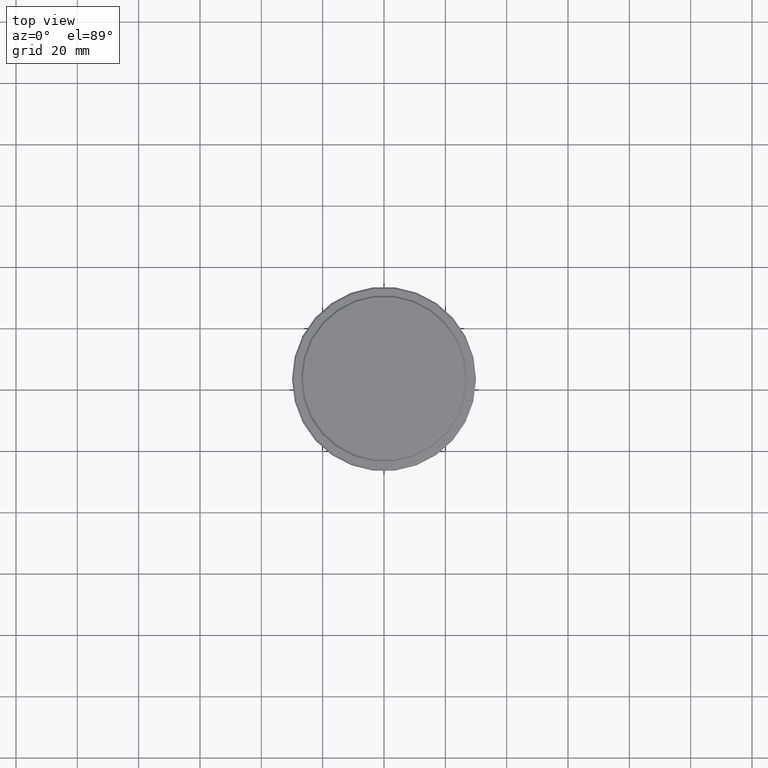
[diagram: clean part render]
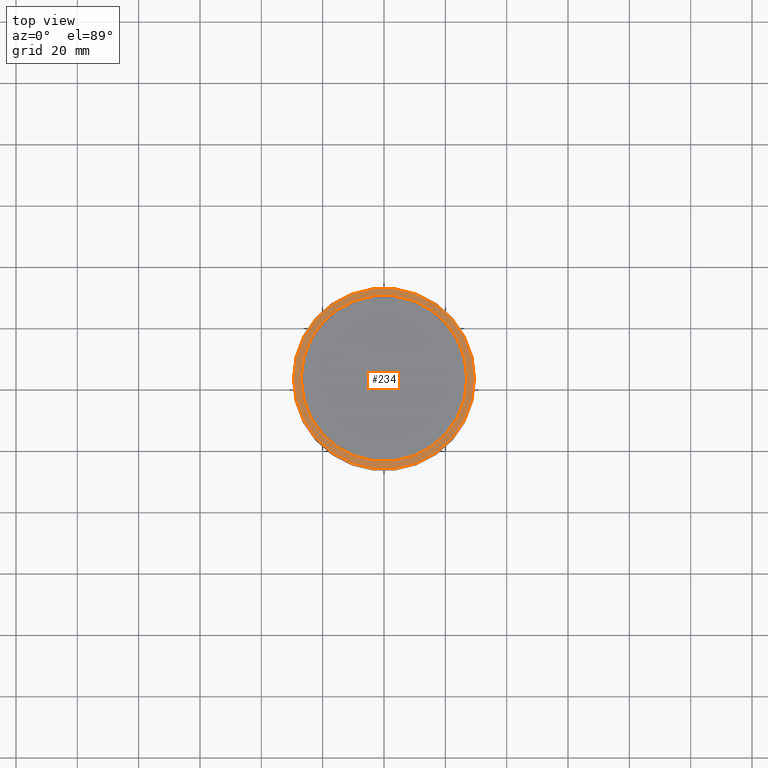
[diagram: same view with one face highlighted and labeled with its STEP entity id]
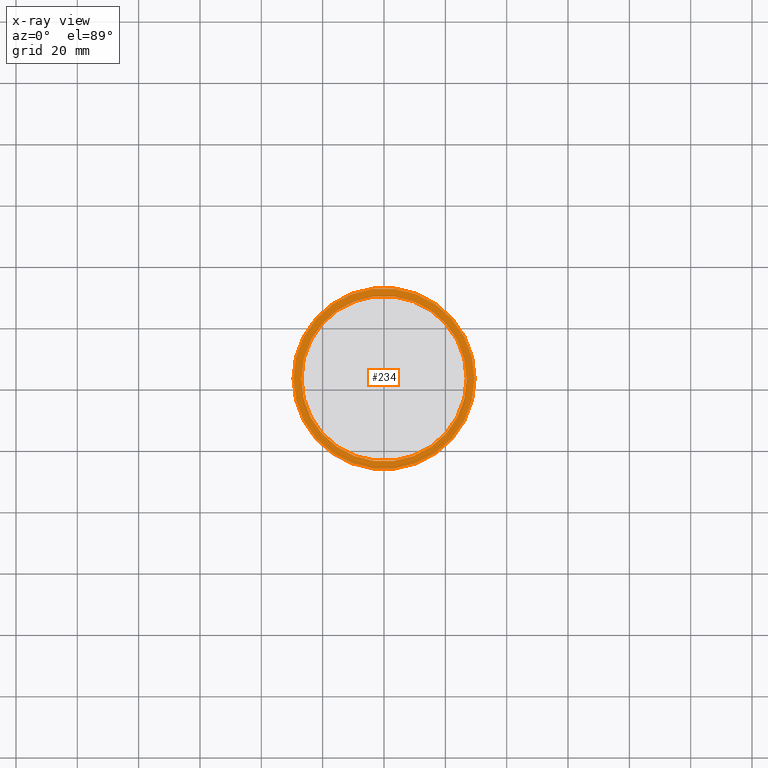
[diagram: x-ray of the same camera — body ghosted, the highlighted face saturated]
A machine part, top view. The second image highlights one B-rep face of the part: STEP entity #234.
The next image is the same camera in x-ray: the body ghosted, the highlighted face saturated — about 0% of this face is hidden behind the body in this view.
In plain terms, the highlighted planar face has unit normal (0, -0, 1).
Its self-contained STEP definition (entity closure, byte-faithful):
#15 = CARTESIAN_POINT ( 'NONE',  ( 0.000000000000000000, 0.000000000000000000, -12.00000000000000178 ) ) ;
#28 = EDGE_CURVE ( 'NONE', #413, #502, #29, .T. ) ;
#29 = CIRCLE ( 'NONE', #1218, 26.99999999999999289 ) ;
#35 = CIRCLE ( 'NONE', #309, 26.99999999999999289 ) ;
#147 = ORIENTED_EDGE ( 'NONE', *, *, #882, .T. ) ;
#148 = CIRCLE ( 'NONE', #947, 29.50000000000002487 ) ;
#165 = CARTESIAN_POINT ( 'NONE',  ( 29.50000000000002487, 3.643324227463376968E-15, -12.00000000000000178 ) ) ;
#195 = CIRCLE ( 'NONE', #991, 29.50000000000002487 ) ;
#203 = DIRECTION ( 'NONE',  ( -0.000000000000000000, -0.000000000000000000, 1.000000000000000000 ) ) ;
#208 = DIRECTION ( 'NONE',  ( 1.000000000000000000, 0.000000000000000000, 0.000000000000000000 ) ) ;
#234 = ADVANCED_FACE ( 'NONE', ( #460, #800 ), #895, .T. ) ;
#246 = EDGE_CURVE ( 'NONE', #302, #1371, #148, .T. ) ;
#302 = VERTEX_POINT ( 'NONE', #165 ) ;
#309 = AXIS2_PLACEMENT_3D ( 'NONE', #1416, #555, #208 ) ;
#351 = DIRECTION ( 'NONE',  ( 1.000000000000000000, 0.000000000000000000, 0.000000000000000000 ) ) ;
#413 = VERTEX_POINT ( 'NONE', #1080 ) ;
#453 = ORIENTED_EDGE ( 'NONE', *, *, #246, .T. ) ;
#460 = FACE_OUTER_BOUND ( 'NONE', #686, .T. ) ;
#502 = VERTEX_POINT ( 'NONE', #850 ) ;
#530 = DIRECTION ( 'NONE',  ( 1.000000000000000000, 0.000000000000000000, 0.000000000000000000 ) ) ;
#555 = DIRECTION ( 'NONE',  ( 0.000000000000000000, 0.000000000000000000, -1.000000000000000000 ) ) ;
#597 = DIRECTION ( 'NONE',  ( 1.000000000000000000, 0.000000000000000000, 0.000000000000000000 ) ) ;
#686 = EDGE_LOOP ( 'NONE', ( #1213, #453 ) ) ;
#687 = CARTESIAN_POINT ( 'NONE',  ( 0.000000000000000000, 0.000000000000000000, -12.00000000000000178 ) ) ;
#718 = ORIENTED_EDGE ( 'NONE', *, *, #28, .T. ) ;
#726 = EDGE_LOOP ( 'NONE', ( #147, #718 ) ) ;
#729 = DIRECTION ( 'NONE',  ( 1.000000000000000000, 0.000000000000000000, 0.000000000000000000 ) ) ;
#800 = FACE_BOUND ( 'NONE', #726, .T. ) ;
#850 = CARTESIAN_POINT ( 'NONE',  ( 26.99999999999999289, 0.000000000000000000, -12.00000000000000178 ) ) ;
#882 = EDGE_CURVE ( 'NONE', #502, #413, #35, .T. ) ;
#895 = PLANE ( 'NONE',  #1149 ) ;
#940 = EDGE_CURVE ( 'NONE', #1371, #302, #195, .T. ) ;
#947 = AXIS2_PLACEMENT_3D ( 'NONE', #1313, #1163, #597 ) ;
#991 = AXIS2_PLACEMENT_3D ( 'NONE', #15, #203, #530 ) ;
#1080 = CARTESIAN_POINT ( 'NONE',  ( -26.99999999999999289, 3.306546357697852944E-15, -12.00000000000000178 ) ) ;
#1083 = CARTESIAN_POINT ( 'NONE',  ( -29.50000000000002487, 0.000000000000000000, -12.00000000000000178 ) ) ;
#1149 = AXIS2_PLACEMENT_3D ( 'NONE', #1232, #1336, #351 ) ;
#1163 = DIRECTION ( 'NONE',  ( -0.000000000000000000, -0.000000000000000000, 1.000000000000000000 ) ) ;
#1213 = ORIENTED_EDGE ( 'NONE', *, *, #940, .T. ) ;
#1218 = AXIS2_PLACEMENT_3D ( 'NONE', #687, #1347, #729 ) ;
#1232 = CARTESIAN_POINT ( 'NONE',  ( 0.000000000000000000, 26.49999999999999645, -12.00000000000000178 ) ) ;
#1313 = CARTESIAN_POINT ( 'NONE',  ( 0.000000000000000000, 0.000000000000000000, -12.00000000000000178 ) ) ;
#1336 = DIRECTION ( 'NONE',  ( 0.000000000000000000, -0.000000000000000000, 1.000000000000000000 ) ) ;
#1347 = DIRECTION ( 'NONE',  ( 0.000000000000000000, 0.000000000000000000, -1.000000000000000000 ) ) ;
#1371 = VERTEX_POINT ( 'NONE', #1083 ) ;
#1416 = CARTESIAN_POINT ( 'NONE',  ( 0.000000000000000000, 0.000000000000000000, -12.00000000000000178 ) ) ;